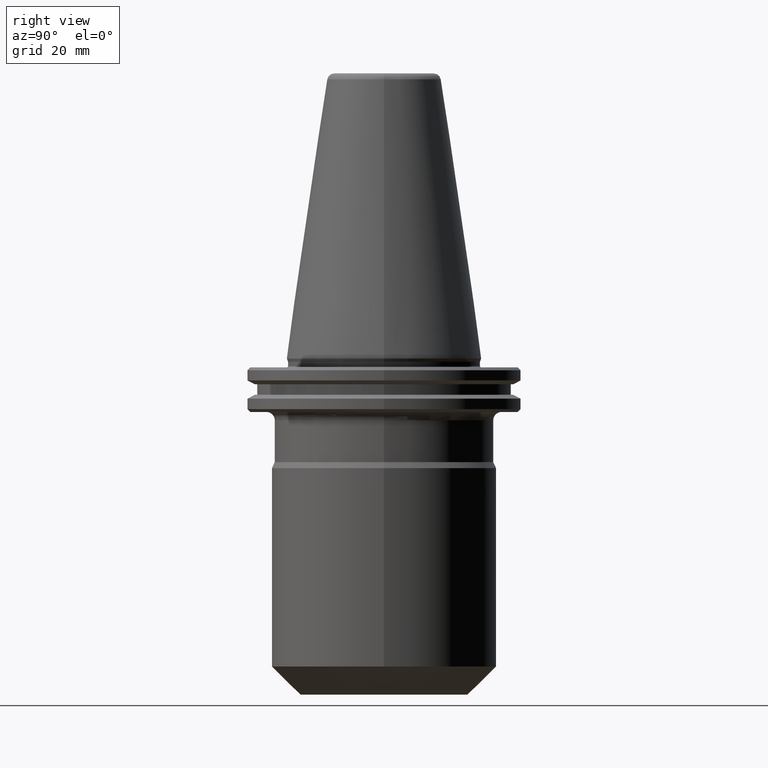
[diagram: clean part render]
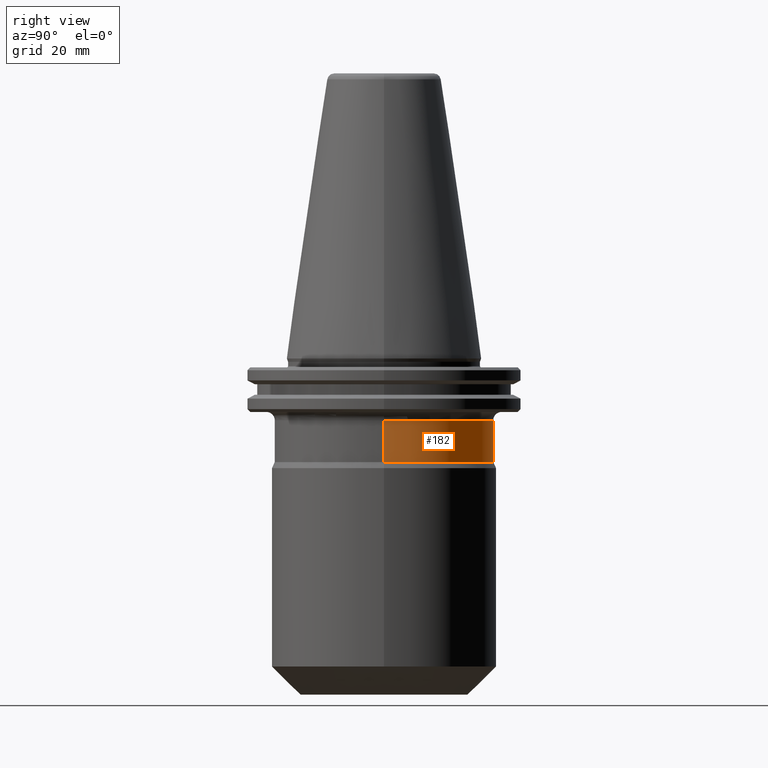
[diagram: same view with one face highlighted and labeled with its STEP entity id]
A machine part, right view. The second image highlights one B-rep face of the part: STEP entity #182.
In plain terms, the highlighted cylindrical surface (partial cylindrical patch) has radius 39 mm, axis along (-0, -0, 1).
Its self-contained STEP definition (entity closure, byte-faithful):
#4 = CYLINDRICAL_SURFACE ( 'NONE', #400, 39.00000000000000000 ) ;
#28 = CARTESIAN_POINT ( 'NONE',  ( 39.00000000000000000, 0.0000000000000000000, -36.99549307949040200 ) ) ;
#32 = EDGE_CURVE ( 'NONE', #221, #1030, #819, .T. ) ;
#35 = FACE_OUTER_BOUND ( 'NONE', #541, .T. ) ;
#52 = EDGE_CURVE ( 'NONE', #1030, #1084, #428, .T. ) ;
#68 = EDGE_CURVE ( 'NONE', #123, #221, #377, .T. ) ;
#77 = ORIENTED_EDGE ( 'NONE', *, *, #32, .T. ) ;
#105 = ORIENTED_EDGE ( 'NONE', *, *, #482, .F. ) ;
#123 = VERTEX_POINT ( 'NONE', #28 ) ;
#182 = ADVANCED_FACE ( 'NONE', ( #35 ), #4, .T. ) ;
#221 = VERTEX_POINT ( 'NONE', #1008 ) ;
#301 = DIRECTION ( 'NONE',  ( 0.0000000000000000000, 0.0000000000000000000, -1.000000000000000000 ) ) ;
#341 = DIRECTION ( 'NONE',  ( 1.000000000000000000, 0.0000000000000000000, 0.0000000000000000000 ) ) ;
#353 = DIRECTION ( 'NONE',  ( 1.000000000000000000, 0.0000000000000000000, 0.0000000000000000000 ) ) ;
#377 = CIRCLE ( 'NONE', #915, 39.00000000000000000 ) ;
#400 = AXIS2_PLACEMENT_3D ( 'NONE', #517, #797, #353 ) ;
#414 = ORIENTED_EDGE ( 'NONE', *, *, #68, .T. ) ;
#428 = CIRCLE ( 'NONE', #862, 39.00000000000000000 ) ;
#455 = LINE ( 'NONE', #1036, #839 ) ;
#471 = DIRECTION ( 'NONE',  ( -0.0000000000000000000, -0.0000000000000000000, 1.000000000000000000 ) ) ;
#482 = EDGE_CURVE ( 'NONE', #123, #1084, #455, .T. ) ;
#517 = CARTESIAN_POINT ( 'NONE',  ( 0.0000000000000000000, 0.0000000000000000000, 158.1180504483445200 ) ) ;
#541 = EDGE_LOOP ( 'NONE', ( #414, #77, #925, #105 ) ) ;
#603 = VECTOR ( 'NONE', #1075, 1000.000000000000000 ) ;
#642 = DIRECTION ( 'NONE',  ( -0.0000000000000000000, -0.0000000000000000000, 1.000000000000000000 ) ) ;
#724 = CARTESIAN_POINT ( 'NONE',  ( 39.00000000000000000, 0.0000000000000000000, -22.09999999999995200 ) ) ;
#797 = DIRECTION ( 'NONE',  ( -0.0000000000000000000, -0.0000000000000000000, 1.000000000000000000 ) ) ;
#819 = LINE ( 'NONE', #936, #603 ) ;
#839 = VECTOR ( 'NONE', #642, 1000.000000000000000 ) ;
#862 = AXIS2_PLACEMENT_3D ( 'NONE', #887, #301, #341 ) ;
#887 = CARTESIAN_POINT ( 'NONE',  ( 0.0000000000000000000, 0.0000000000000000000, -22.09999999999995200 ) ) ;
#915 = AXIS2_PLACEMENT_3D ( 'NONE', #1059, #471, #967 ) ;
#925 = ORIENTED_EDGE ( 'NONE', *, *, #52, .T. ) ;
#936 = CARTESIAN_POINT ( 'NONE',  ( -39.00000000000000000, 4.776122516674677900E-015, 158.1180504483445200 ) ) ;
#951 = CARTESIAN_POINT ( 'NONE',  ( -39.00000000000000000, 4.776122516674677900E-015, -22.09999999999995200 ) ) ;
#967 = DIRECTION ( 'NONE',  ( 1.000000000000000000, 0.0000000000000000000, 0.0000000000000000000 ) ) ;
#1008 = CARTESIAN_POINT ( 'NONE',  ( -39.00000000000000000, 4.776122516674677900E-015, -36.99549307949040200 ) ) ;
#1030 = VERTEX_POINT ( 'NONE', #951 ) ;
#1036 = CARTESIAN_POINT ( 'NONE',  ( 39.00000000000000000, 0.0000000000000000000, 158.1180504483445200 ) ) ;
#1059 = CARTESIAN_POINT ( 'NONE',  ( 0.0000000000000000000, 0.0000000000000000000, -36.99549307949040200 ) ) ;
#1075 = DIRECTION ( 'NONE',  ( -0.0000000000000000000, -0.0000000000000000000, 1.000000000000000000 ) ) ;
#1084 = VERTEX_POINT ( 'NONE', #724 ) ;